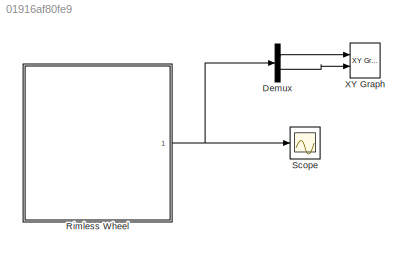
MODEL slx_01916af80fe9
KIND model
CONFIG AbsTol = auto
CONFIG EnableMultiTasking = off
CONFIG FixedStep = 1/1000
CONFIG MaxStep = auto
CONFIG MinStep = auto
CONFIG RelTol = 1e-3
CONFIG SampleTimeConstraint = Unconstrained
CONFIG Solver = ode8
CONFIG SolverName = ode8
CONFIG StartTime = 0.0
CONFIG StopTime = 10
BLOCK [Demux] Demux
  DisplayOption = bar
  Outputs = 2
  Ports = [1, 2]
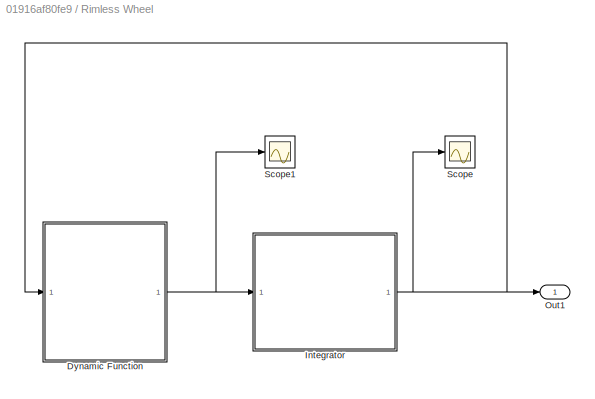
BLOCK [SubSystem] Rimless Wheel
  Ports = [0, 1]
  RequestExecContextInheritance = off
  TreatAsAtomicUnit = on
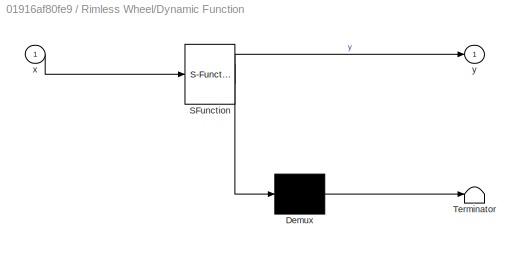
BLOCK [SubSystem] Rimless Wheel/Dynamic Function
  ErrorFcn = Stateflow.Translate.translate
  PermitHierarchicalResolution = ExplicitOnly
  Ports = [1, 1]
  RequestExecContextInheritance = off
  SFBlockType = MATLAB Function
  TreatAsAtomicUnit = on
BLOCK [Demux] Rimless Wheel/Dynamic Function/ Demux 
  Outputs = 1
  Ports = [1, 1]
BLOCK [S-Function] Rimless Wheel/Dynamic Function/ SFunction 
  EnableBusSupport = on
  FunctionName = sf_sfun
  PortCounts = [1 2]
  Ports = [1, 2]
  SFcnIsStateOwnerBlock = off
  SFunctionDeploymentMode = off
  Tag = Stateflow S-Function rimless_wheel_sim_ver4 2
BLOCK [Terminator] Rimless Wheel/Dynamic Function/ Terminator 
BLOCK [Inport] Rimless Wheel/Dynamic Function/x
  IconDisplay = Port number
BLOCK [Outport] Rimless Wheel/Dynamic Function/y
  IconDisplay = Port number
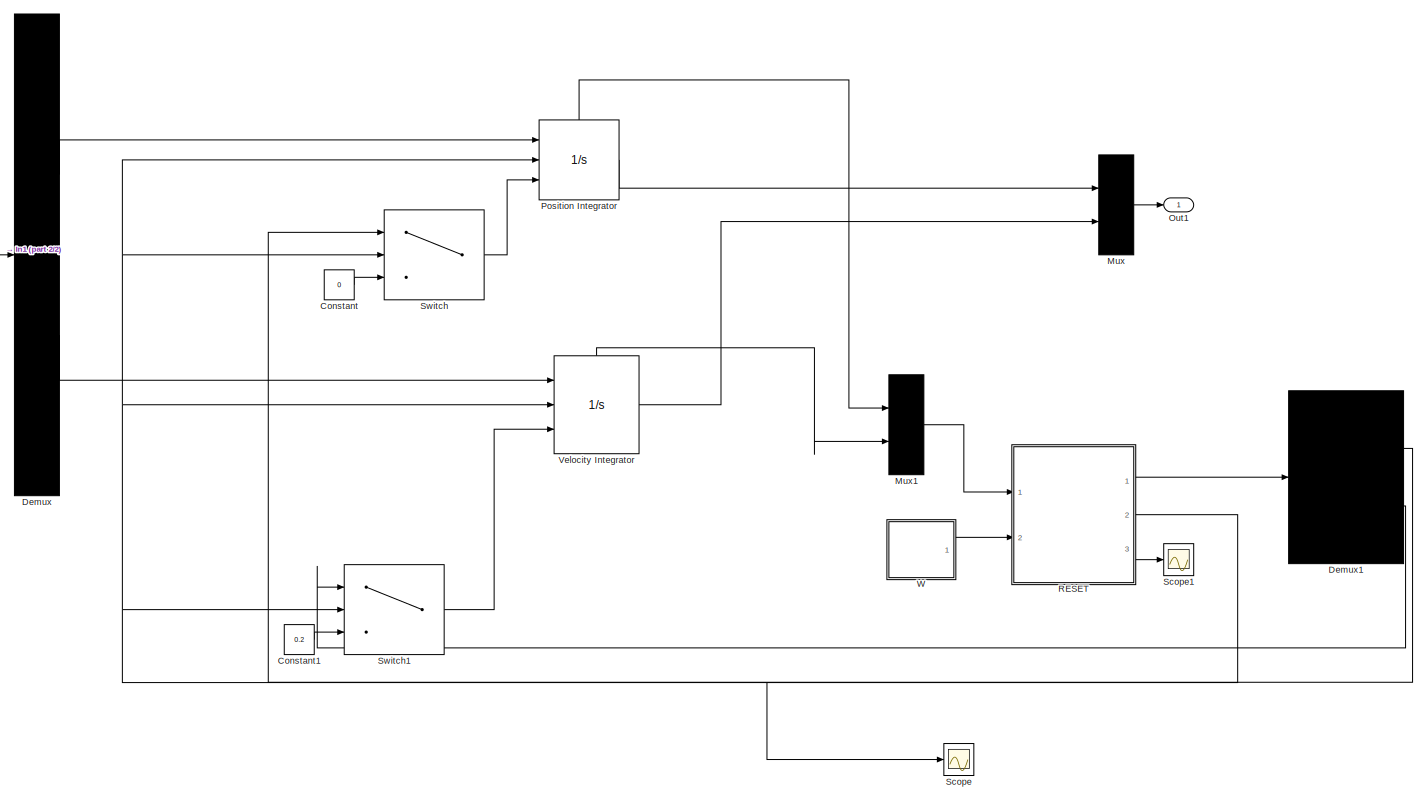
[diagram: Rimless Wheel/Integrator - part 1/2, most of the canvas]
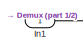
[diagram: Rimless Wheel/Integrator - part 2/2, middle left region]
BLOCK [SubSystem] Rimless Wheel/Integrator
  Ports = [1, 1]
  RequestExecContextInheritance = off
BLOCK [Constant] Rimless Wheel/Integrator/Constant
  Value = 0
BLOCK [Constant] Rimless Wheel/Integrator/Constant1
  Value = 0.2
BLOCK [Demux] Rimless Wheel/Integrator/Demux
  DisplayOption = bar
  Outputs = 2
  Ports = [1, 2]
BLOCK [Demux] Rimless Wheel/Integrator/Demux1
  DisplayOption = bar
  Outputs = 2
  Ports = [1, 2]
BLOCK [Inport] Rimless Wheel/Integrator/In1
  IconDisplay = Port number
BLOCK [Mux] Rimless Wheel/Integrator/Mux
  DisplayOption = bar
  Inputs = 2
  Ports = [2, 1]
BLOCK [Mux] Rimless Wheel/Integrator/Mux1
  DisplayOption = bar
  Inputs = 2
  Ports = [2, 1]
BLOCK [Outport] Rimless Wheel/Integrator/Out1
  IconDisplay = Port number
BLOCK [Integrator] Rimless Wheel/Integrator/Position Integrator
  ExternalReset = rising
  InitialCondition = 0.002
  InitialConditionSource = external
  LowerSaturationLimit = teta0
  Ports = [3, 1, 0, 0, 1]
  ShowStatePort = on
  UpperSaturationLimit = teta1
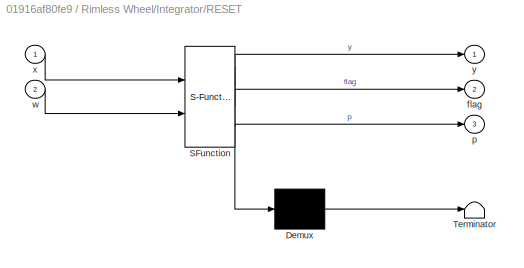
BLOCK [SubSystem] Rimless Wheel/Integrator/RESET
  ErrorFcn = Stateflow.Translate.translate
  PermitHierarchicalResolution = ExplicitOnly
  Ports = [2, 3]
  RequestExecContextInheritance = off
  SFBlockType = MATLAB Function
  TreatAsAtomicUnit = on
BLOCK [Demux] Rimless Wheel/Integrator/RESET/ Demux 
  Outputs = 1
  Ports = [1, 1]
BLOCK [S-Function] Rimless Wheel/Integrator/RESET/ SFunction 
  EnableBusSupport = on
  FunctionName = sf_sfun
  PortCounts = [2 4]
  Ports = [2, 4]
  SFcnIsStateOwnerBlock = off
  SFunctionDeploymentMode = off
  Tag = Stateflow S-Function rimless_wheel_sim_ver4 1
BLOCK [Terminator] Rimless Wheel/Integrator/RESET/ Terminator 
BLOCK [Outport] Rimless Wheel/Integrator/RESET/flag
  IconDisplay = Port number
  Port = 2
BLOCK [Outport] Rimless Wheel/Integrator/RESET/p
  IconDisplay = Port number
  Port = 3
BLOCK [Inport] Rimless Wheel/Integrator/RESET/w
  IconDisplay = Port number
  Port = 2
BLOCK [Inport] Rimless Wheel/Integrator/RESET/x
  IconDisplay = Port number
BLOCK [Outport] Rimless Wheel/Integrator/RESET/y
  IconDisplay = Port number
BLOCK [Scope] Rimless Wheel/Integrator/Scope
  Floating = off
  NumInputPorts = 1
  Ports = [1]
  ScopeSpecificationString = Simulink.scopes.TimeScopeBlockCfg('CurrentConfiguration', extmgr.ConfigurationSet(extmgr.Configuration('Core','General UI',true),extmgr.Configuration('Core','Source UI',true),extmgr.Configuration('Sources','WiredSimulink',true,'DataLoggingVariableName','ScopeData1'),extmgr.Configuration('Visuals','Time Domain',true,'SerializedDisplays',{struct('MinYLimReal','-0.125','MaxYLimReal','1.125','YLabelRe...<+1376ch>
BLOCK [Scope] Rimless Wheel/Integrator/Scope1
  Floating = off
  NumInputPorts = 1
  Ports = [1]
  ScopeSpecificationString = Simulink.scopes.TimeScopeBlockCfg('CurrentConfiguration', extmgr.ConfigurationSet(extmgr.Configuration('Core','General UI',true),extmgr.Configuration('Core','Source UI',true),extmgr.Configuration('Sources','WiredSimulink',true,'DataLoggingVariableName','ScopeData1'),extmgr.Configuration('Visuals','Time Domain',true,'SerializedDisplays',{struct('MinYLimReal','-0.125','MaxYLimReal','1.125','YLabelRe...<+1373ch>
BLOCK [Switch] Rimless Wheel/Integrator/Switch
  Criteria = u2 ~= 0
  InputSameDT = off
  SaturateOnIntegerOverflow = off
  Threshold = 1
BLOCK [Switch] Rimless Wheel/Integrator/Switch1
  Criteria = u2 ~= 0
  InputSameDT = off
  SaturateOnIntegerOverflow = off
  Threshold = 1
BLOCK [Integrator] Rimless Wheel/Integrator/Velocity Integrator
  ExternalReset = rising
  InitialConditionSource = external
  Ports = [3, 1, 0, 0, 1]
  ShowStatePort = on
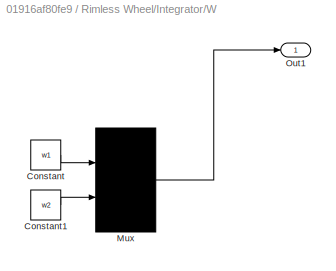
BLOCK [SubSystem] Rimless Wheel/Integrator/W
  Ports = [0, 1]
  RequestExecContextInheritance = off
BLOCK [Constant] Rimless Wheel/Integrator/W/Constant
  Value = w1
BLOCK [Constant] Rimless Wheel/Integrator/W/Constant1
  Value = w2
BLOCK [Mux] Rimless Wheel/Integrator/W/Mux
  DisplayOption = bar
  Inputs = 2
  Ports = [2, 1]
BLOCK [Outport] Rimless Wheel/Integrator/W/Out1
  IconDisplay = Port number
BLOCK [Outport] Rimless Wheel/Out1
  IconDisplay = Port number
BLOCK [Scope] Rimless Wheel/Scope
  Floating = off
  NumInputPorts = 1
  Ports = [1]
  ScopeSpecificationString = Simulink.scopes.TimeScopeBlockCfg('CurrentConfiguration', extmgr.ConfigurationSet(extmgr.Configuration('Core','General UI',true),extmgr.Configuration('Core','Source UI',true),extmgr.Configuration('Sources','WiredSimulink',true,'DataLoggingVariableName','ScopeData1'),extmgr.Configuration('Visuals','Time Domain',true,'SerializedDisplays',{struct('MinYLimReal','-0.47606','MaxYLimReal','4.28454','YLab...<+1457ch>
BLOCK [Scope] Rimless Wheel/Scope1
  Floating = off
  NumInputPorts = 1
  Ports = [1]
  ScopeSpecificationString = Simulink.scopes.TimeScopeBlockCfg('CurrentConfiguration', extmgr.ConfigurationSet(extmgr.Configuration('Core','General UI',true),extmgr.Configuration('Core','Source UI',true),extmgr.Configuration('Sources','WiredSimulink',true,'DataLoggingVariableName','ScopeData2'),extmgr.Configuration('Visuals','Time Domain',true,'SerializedDisplays',{struct('MinYLimReal','-1.25238','MaxYLimReal','11.27146','YLa...<+1470ch>
BLOCK [Scope] Scope
  Floating = off
  NumInputPorts = 1
  Ports = [1]
  ScopeSpecificationString = Simulink.scopes.TimeScopeBlockCfg('CurrentConfiguration', extmgr.ConfigurationSet(extmgr.Configuration('Core','General UI',true),extmgr.Configuration('Core','Source UI',true),extmgr.Configuration('Sources','WiredSimulink',true),extmgr.Configuration('Visuals','Time Domain',true,'SerializedDisplays',{struct('MinYLimReal','-0.74513','MaxYLimReal','4.74269','YLabelReal','','MinYLimMag','0.00000','MaxY...<+1423ch>
BLOCK [Reference] XY Graph  REF=simulink/Sinks/XY Graph
  Ports = [2]
  SourceBlock = simulink/Sinks/XY Graph
  SourceProductBaseCode = SL
  SourceProductName = Simulink
  SourceType = XY scope.
LINE Demux:1 -> XY Graph:1
LINE Demux:2 -> XY Graph:2
NET Rimless Wheel/Dynamic Function:1 -> Rimless Wheel/Integrator:1, Rimless Wheel/Scope1:1
LINE Rimless Wheel/Integrator/Constant1:1 -> Rimless Wheel/Integrator/Switch1:3
LINE Rimless Wheel/Integrator/Constant:1 -> Rimless Wheel/Integrator/Switch:3
LINE Rimless Wheel/Integrator/Demux1:1 -> Rimless Wheel/Integrator/Switch:1
LINE Rimless Wheel/Integrator/Demux1:2 -> Rimless Wheel/Integrator/Switch1:1
LINE Rimless Wheel/Integrator/Demux:1 -> Rimless Wheel/Integrator/Position Integrator:1
LINE Rimless Wheel/Integrator/Demux:2 -> Rimless Wheel/Integrator/Velocity Integrator:1
LINE Rimless Wheel/Integrator/In1:1 -> Rimless Wheel/Integrator/Demux:1
LINE Rimless Wheel/Integrator/Mux1:1 -> Rimless Wheel/Integrator/RESET:1
LINE Rimless Wheel/Integrator/Mux:1 -> Rimless Wheel/Integrator/Out1:1
LINE Rimless Wheel/Integrator/Position Integrator:1 -> Rimless Wheel/Integrator/Mux:1
LINE Rimless Wheel/Integrator/Position Integrator:state -> Rimless Wheel/Integrator/Mux1:1
LINE Rimless Wheel/Integrator/RESET:1 -> Rimless Wheel/Integrator/Demux1:1
NET Rimless Wheel/Integrator/RESET:2 -> Rimless Wheel/Integrator/Position Integrator:2, Rimless Wheel/Integrator/Scope:1, Rimless Wheel/Integrator/Switch1:2, Rimless Wheel/Integrator/Switch:2, Rimless Wheel/Integrator/Velocity Integrator:2
LINE Rimless Wheel/Integrator/RESET:3 -> Rimless Wheel/Integrator/Scope1:1
LINE Rimless Wheel/Integrator/Switch1:1 -> Rimless Wheel/Integrator/Velocity Integrator:3
LINE Rimless Wheel/Integrator/Switch:1 -> Rimless Wheel/Integrator/Position Integrator:3
LINE Rimless Wheel/Integrator/Velocity Integrator:1 -> Rimless Wheel/Integrator/Mux:2
LINE Rimless Wheel/Integrator/Velocity Integrator:state -> Rimless Wheel/Integrator/Mux1:2
LINE Rimless Wheel/Integrator/W/Constant1:1 -> Rimless Wheel/Integrator/W/Mux:2
LINE Rimless Wheel/Integrator/W/Constant:1 -> Rimless Wheel/Integrator/W/Mux:1
LINE Rimless Wheel/Integrator/W/Mux:1 -> Rimless Wheel/Integrator/W/Out1:1
LINE Rimless Wheel/Integrator/W:1 -> Rimless Wheel/Integrator/RESET:2
NET Rimless Wheel/Integrator:1 -> Rimless Wheel/Dynamic Function:1, Rimless Wheel/Out1:1, Rimless Wheel/Scope:1
NET Rimless Wheel:1 -> Demux:1, Scope:1
note: NET lines group one-source signal fan-out (src -> all destinations, sorted); 1:1 wires keep LINE
CHART Rimless Wheel/Integrator/RESET states=1 transitions=1
  STATE_LABEL 'eML_blk_kernel()'
  STATE_LABEL 'SCRIPT:\nfunction [y,flag,p] = fcn(x, w)\n%% Parameters\nl=0.5 ;         %length of a single scope\ng=9.81  ;       %gravity\nn=8    ;        %scope number\nalfa= pi/16 ;    %slope angle\nbeta=2*pi/n ;     % angle of between the scopes\ngama=beta/2;\n\nteta0=alfa-gama;   % initial locomotion limit\nteta1=alfa+gama;   % final locomotion limit\n\nw1=w(1);\nw2=w(2);\n\n%% Reset Function\ny=zeros(2,1);\nflag=0;\np=0;\nif...<+385ch>'
CHART Rimless Wheel/Dynamic Function states=1 transitions=1
  STATE_LABEL 'eML_blk_kernel()'
  STATE_LABEL 'SCRIPT:\nfunction y = fcn(x)\n%% Parameters\nm=1  ;          %point mass\nl=0.5 ;         %length of a single scope\ng=9.81  ;       %gravity\nn=8    ;        %scope number\nalfa= pi/16 ;    %slope angle\nbeta=2*pi/n ;     % angle of between the scopes\ngama=beta/2;\n\nteta0=alfa-gama;   % initial locomotion limit\nteta1=alfa+gama;   % final locomotion limit\n\n%% Initialization\nq=0;\ndq=0;\nfx=zeros(2,1);\n\nq=x(1...<+62ch>'
